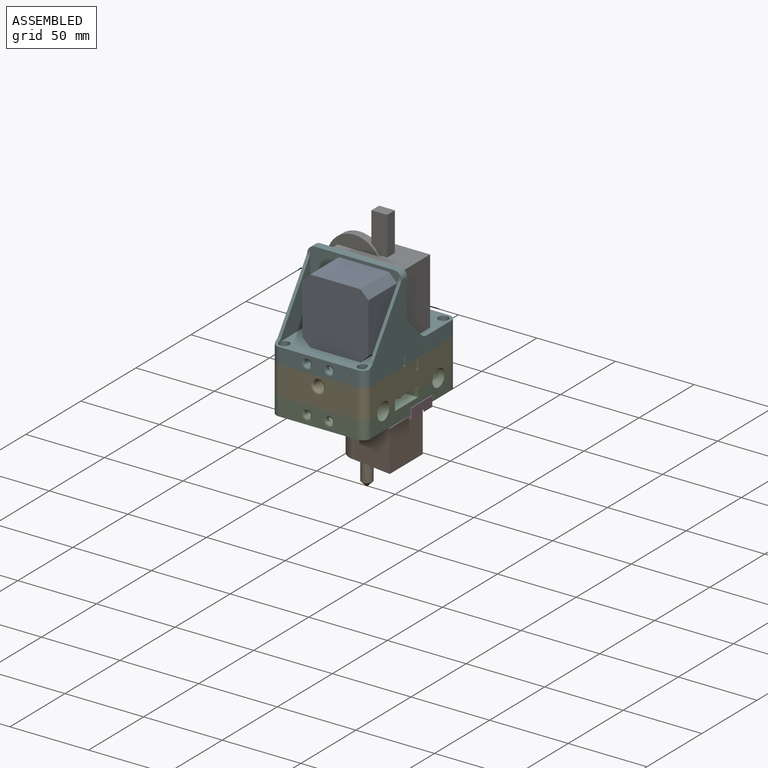
[diagram: assembled view]
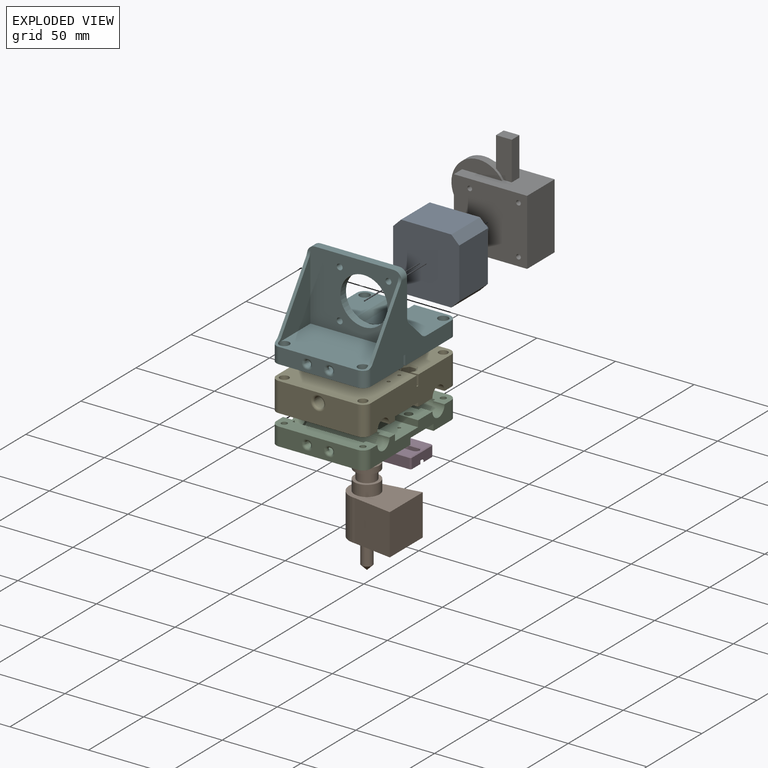
[diagram: exploded view]
GUIDED TOUR — MATED ASSEMBLY (Onshape document 26b72d1b7402915d3c3fbc10, AutoMate assembly 26b72d1b7402915d3c3fbc10_4db1da54b3cbb847e89b29d3_1b6510409ccf423bcf5e5d86_default)

This assembly has 7 components, labeled P0..P6 below (a component is one placed occurrence of a part; the same part can appear more than once), held together by 6 mates. A mate is a constraint between two components; its type names the relative motion it leaves free:
  FASTENED — locks the two components together rigidly (no relative motion).
Axis/direction vectors are unit vectors and 'through' points are millimeter coordinates, both in the assembly's world frame.

MATES
  1. FASTENED "Fastened 4": P1 <-> P3, direction (0.000, 0.000, 1.000) through (-5.00, 10.00, -17.00) mm
  2. FASTENED "Fastened 1": P3 <-> P2, direction (0.000, 0.000, 1.000) through (-5.00, 10.00, -11.00) mm
  3. FASTENED "Fastened 5": P4 <-> P5, direction (0.000, 0.000, 1.000) through (25.00, -36.50, 15.00) mm
  4. FASTENED "Fastened 2": P0 <-> P5, direction (0.000, 1.000, 0.000) through (-9.40, -8.50, 62.50) mm
  5. FASTENED "Fastened 7": P2 <-> P4, direction (0.000, 0.000, 1.000) through (25.00, -36.50, -3.55) mm
  6. FASTENED "Fastened 3": P6 <-> P5, direction (0.000, -1.000, 0.000) through (-9.40, -3.50, 62.50) mm

ASSEMBLY ORDER
  1. P3 — the base component [order heuristic]
  2. P1 — core [order heuristic]
  3. P2 [order verified]
  4. P4 [order verified]
  5. P5 [order verified]
  6. P0 [order verified]
  7. P6 [order verified]
(P2 verified with a relaxed clearance tolerance: the source model stores slight part interference there.)
Order-tag legend:
  [order verified] — this step's position reverses a verified removal order: the component was checked to insert without passing through the ones already placed.
  [order heuristic] — the first 2 components form the assembly's core: parts whose collision-free extraction could not be verified, listed in mate-graph order.

Of the 7 components, 1 carries the full construction recipe — the FeatureScript program that regenerates the part's solid from scratch; the rest are supplied as boundary geometry only.
Each toured component is shown spotlighted twice — in the assembled view, then in the exploded view, where a leader line traces a displaced component back to its assembled socket (saturated green if recipe-attached, orange if geometry-only; every other component desaturated gray) — followed by its recipe or geometry summary and the mates that hold it.
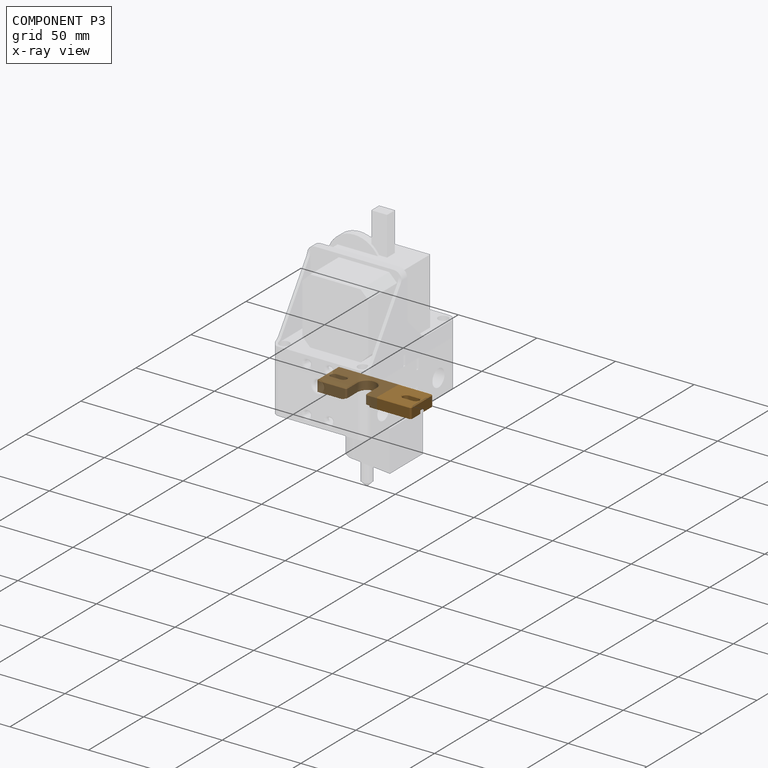
[diagram: component P3 — x-ray view]
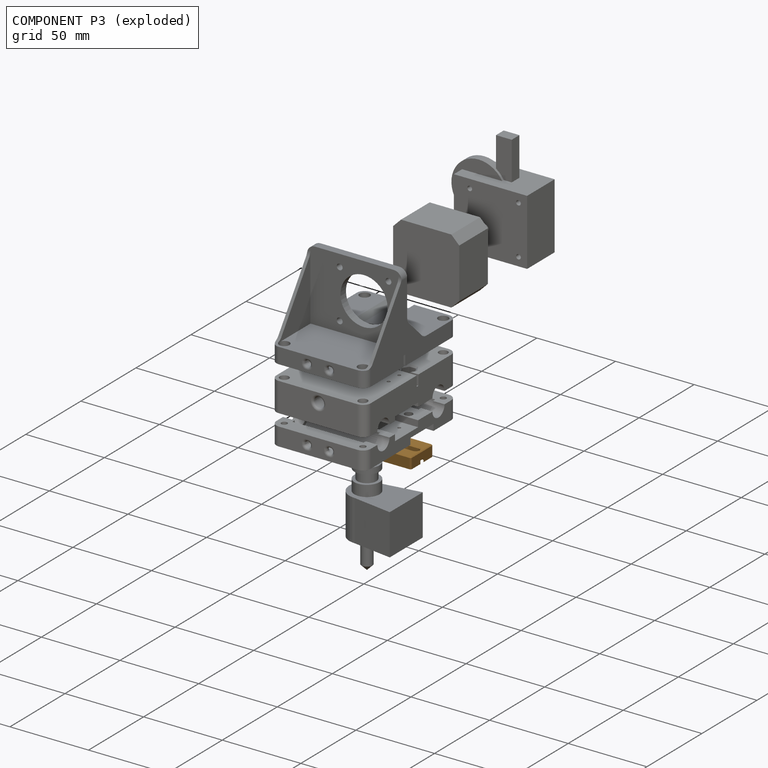
[diagram: component P3 — exploded]
COMPONENT P3 — geometry summary (no construction recipe available for this part):
  bounding box: 60.0 x 20.0 x 7.0 mm
  B-rep topology: 1 solid, 64 faces, 328 edges
  volume: 6183 mm^3 (74% of its bounding box)
Held by: FASTENED mate "Fastened 4" to P1; FASTENED mate "Fastened 1" to P2.
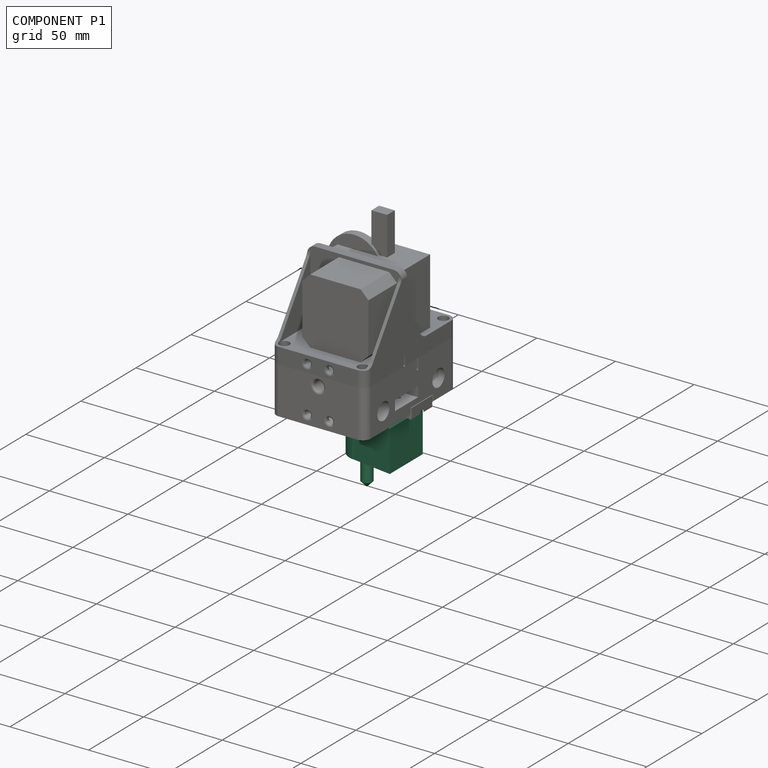
[diagram: component P1 — assembled]
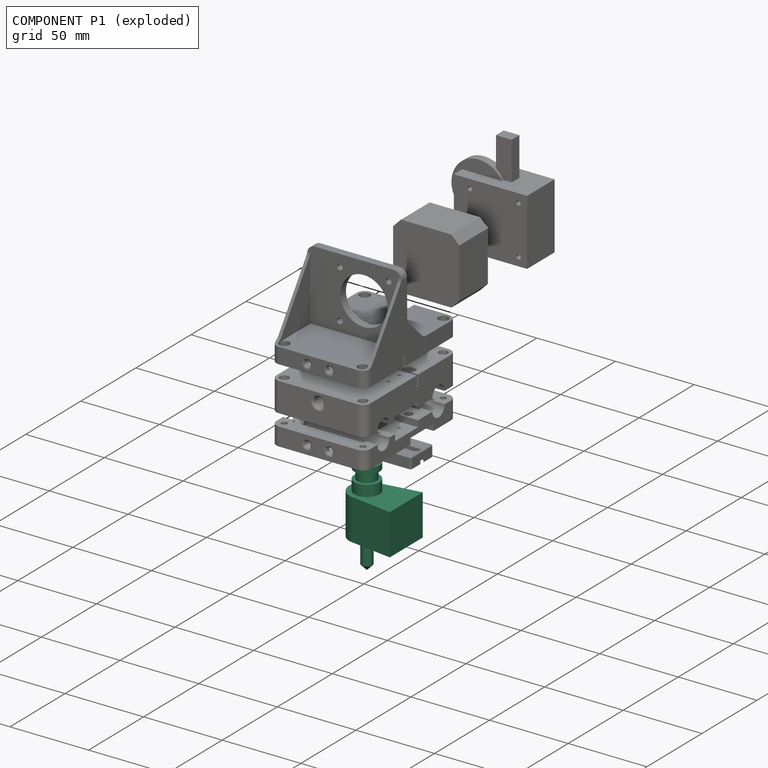
[diagram: component P1 — exploded]
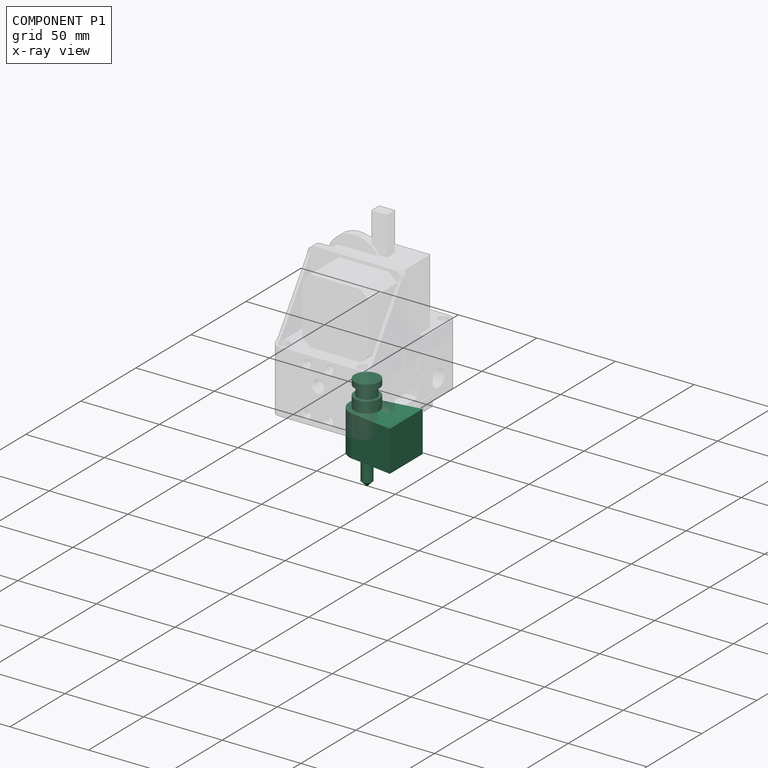
[diagram: component P1 — x-ray view]
COMPONENT P1 — recipe-attached (CADFS 00127798, mesh-verified: the recipe's output STEP matches this component's geometry to below the mesh-comparison resolution (tessellation chordal tolerance ~0.117 mm)).
Held by: FASTENED mate "Fastened 4" to P3.
Construction recipe (FeatureScript — the CAD program that rebuilds this solid; sketch coordinates are in the units given by the * unit suffixes, e.g. mm):

FeatureScript 1511;
import(path : "onshape/std/geometry.fs", version : "1511.0");
import(path : "onshape/std/common.fs", version : "1511.0");
const mm = millimeter;
const VERTEX = EntityType.VERTEX;
const EDGE = EntityType.EDGE;
const FACE = EntityType.FACE;
const BODY = EntityType.BODY;
function v(x, y){return vector(x, y);}
function OD(order){return orderDisambiguation(order);}
function OSD(set){return originalSetDisambiguation(set);}
function TD(topology){return topologyDisambiguation(topology);}
function TDD(query){return trueDependencyDisambiguation(query);}
function sQuery(a, b, c) {return sketchEntityQuery(a, b, c);}

annotation { "Feature Type Name" : "Feature", "Feature Type Description" : "" }
export const myFeature = defineFeature(function(context is Context, id is Id, definition is map)
    precondition{}
    {
        {
            var Q0;
            Q0=qCreatedBy(makeId("Front.planeOp"),FACE);
            var sketch = newSketch(context, id + "F0", { "sketchPlane" : qUnion([Q0])});
            skLineSegment(sketch, "E0", {"start": v(-8, 0) * mm, "end": v(-8, -3.7) * mm});
            skLineSegment(sketch, "E1", {"start": v(-8, -3.7) * mm, "end": v(-6, -3.7) * mm});
            skLineSegment(sketch, "E2", {"start": v(-6, -3.7) * mm, "end": v(-6, -9.7) * mm});
            skLineSegment(sketch, "E3", {"start": v(-6, -9.7) * mm, "end": v(-8, -9.7) * mm});
            skLineSegment(sketch, "E4", {"start": v(-8, -9.7) * mm, "end": v(-8, -12.7) * mm});
            skLineSegment(sketch, "E5", {"start": v(-8, 0) * mm, "end": v(0, 0) * mm});
            skLineSegment(sketch, "E6", {"start": v(0, 0) * mm, "end": v(0, 11.4) * mm, "construction": true});
            skLineSegment(sketch, "E7", {"start": v(-8, -12.7) * mm, "end": v(-8, -16.7) * mm});
            skLineSegment(sketch, "E8", {"start": v(-8, -16.7) * mm, "end": v(-11.15, -16.7) * mm});
            skLineSegment(sketch, "E9", {"start": v(-11.15, -16.7) * mm, "end": v(-11.15, -42.7) * mm});
            skLineSegment(sketch, "E10", {"start": v(-11.15, -42.7) * mm, "end": v(0, -42.7) * mm});
            skLineSegment(sketch, "E11", {"start": v(0, 0) * mm, "end": v(0, -42.7) * mm});
            skSolve(sketch);
        }
        {
            var Q0;
            Q0=makeQuery(id+"F0.imprint","IMPRINT",FACE,{"disambiguationData":[TD([[makeQuery(id+"F0.imprint","IMPRINT",EDGE,{"derivedFrom":sQuery(id+"F0.wireOp",EDGE,"E0")}),1.0]])]});
            var Q1;
            Q1=sQuery(id+"F0.wireOp",EDGE,"E11");
            revolve(context, id + "F1", {"entities" : qUnion([Q0]), "axis" : qUnion([Q1]), "revolveType" : RevolveType.FULL});
        }
        {
            var Q0;
            Q0=qCreatedBy(makeId("Front.planeOp"),FACE);
            var sketch = newSketch(context, id + "F2", { "sketchPlane" : qUnion([Q0])});
            skLineSegment(sketch, "E12", {"start": v(0, -42.7) * mm, "end": v(-3.5, -42.7) * mm});
            skLineSegment(sketch, "E13", {"start": v(-3.5, -42.7) * mm, "end": v(-3.5, -58.8) * mm});
            skLineSegment(sketch, "E14", {"start": v(-3.5, -58.8) * mm, "end": v(0, -62.3) * mm});
            skLineSegment(sketch, "E15", {"start": v(0, -62.3) * mm, "end": v(0, -42.7) * mm});
            skSolve(sketch);
        }
        {
            var Q0;
            Q0 = qSketchRegion(id + "F2", true);
            var Q1;
            Q1=sQuery(id+"F2.wireOp",EDGE,"E15");
            revolve(context, id + "F3", {"operationType" : NewBodyOperationType.ADD, "entities" : qUnion([Q0]), "axis" : qUnion([Q1]), "revolveType" : RevolveType.FULL});
        }
        {
            var Q0;
            Q0=makeQuery(id+"F1.opRevolve","SWEPT_FACE",FACE,{"disambiguationData":[OSD([sQuery(id+"F0.wireOp",EDGE,"E10")])]});
            var sketch = newSketch(context, id + "F4", { "sketchPlane" : qUnion([Q0])});
            skArc(sketch, "E16.0.0", {"start": v(0, -11.15) * mm, "mid": v(11.15, 0) * mm, "end": v(0, 11.15) * mm});
            skLineSegment(sketch, "E17", {"start": v(0, 11.15) * mm, "end": v(25, 15) * mm});
            skLineSegment(sketch, "E18", {"start": v(25, 15) * mm, "end": v(25, -15) * mm});
            skLineSegment(sketch, "E19", {"start": v(25, -15) * mm, "end": v(0, -11.15) * mm});
            skLineSegment(sketch, "E20", {"start": v(0, 0) * mm, "end": v(-21.57, 0) * mm, "construction": true});
            skSolve(sketch);
        }
        {
            var Q0;
            Q0 = qSketchRegion(id + "F4", true);
            var Q1;
            Q1=makeQuery(id+"F1.opRevolve","SWEPT_FACE",FACE,{"disambiguationData":[OSD([sQuery(id+"F0.wireOp",EDGE,"E8")])]});
            extrude(context, id + "F5", {"entities" : qUnion([Q0]), "operationType" : NewBodyOperationType.ADD, "endBound" : BoundingType.UP_TO_SURFACE, "oppositeDirection" : true, "endBoundEntityFace" : qUnion([Q1]), "depth" : 25 * mm});
        }
    });
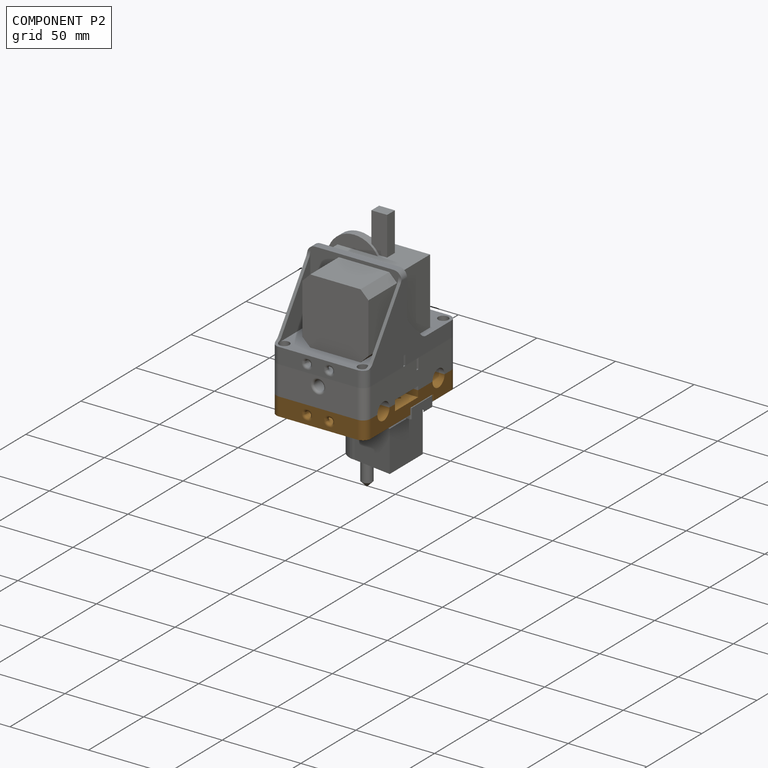
[diagram: component P2 — assembled]
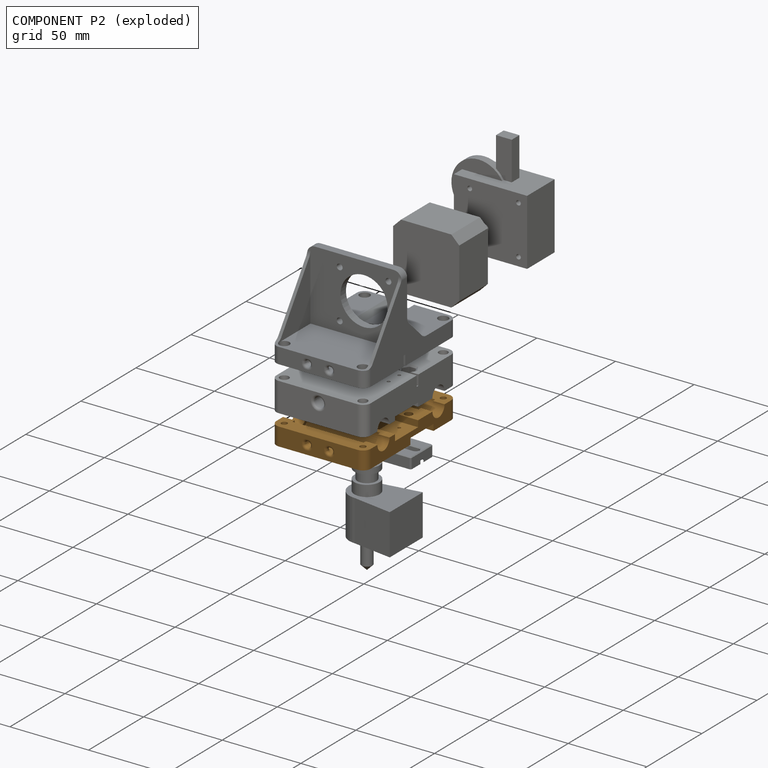
[diagram: component P2 — exploded]
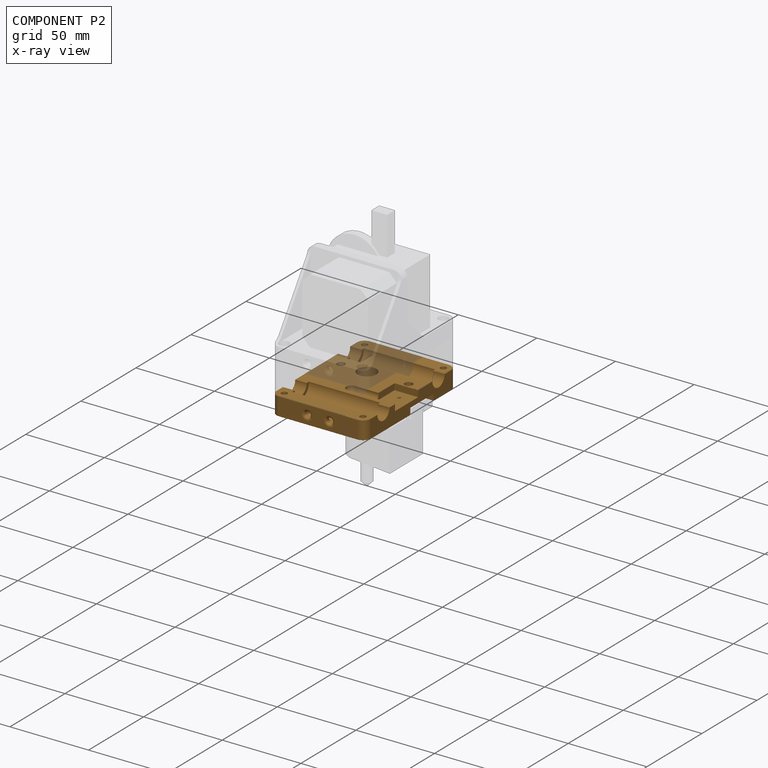
[diagram: component P2 — x-ray view]
COMPONENT P2 — geometry summary (no construction recipe available for this part):
  bounding box: 83.3 x 60.3 x 13.1 mm
  B-rep topology: 1 solid, 85 faces, 429 edges
  volume: 37603 mm^3 (57% of its bounding box)
Held by: FASTENED mate "Fastened 1" to P3; FASTENED mate "Fastened 7" to P4.
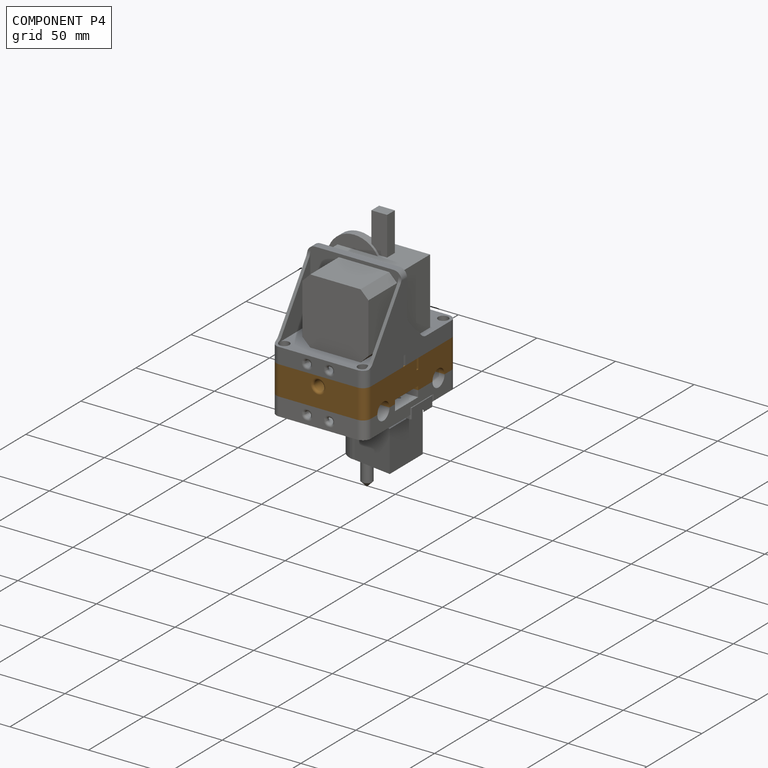
[diagram: component P4 — assembled]
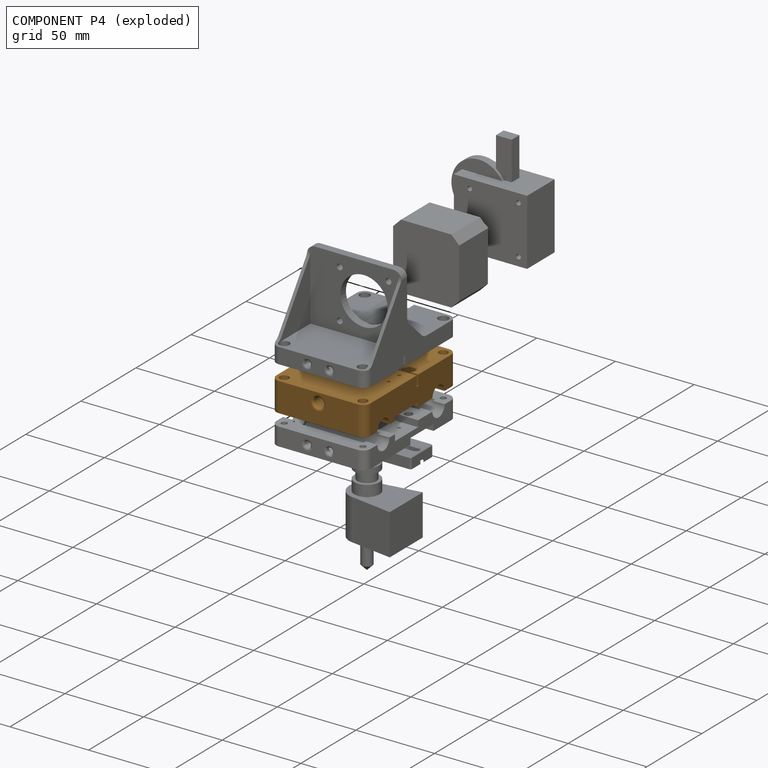
[diagram: component P4 — exploded]
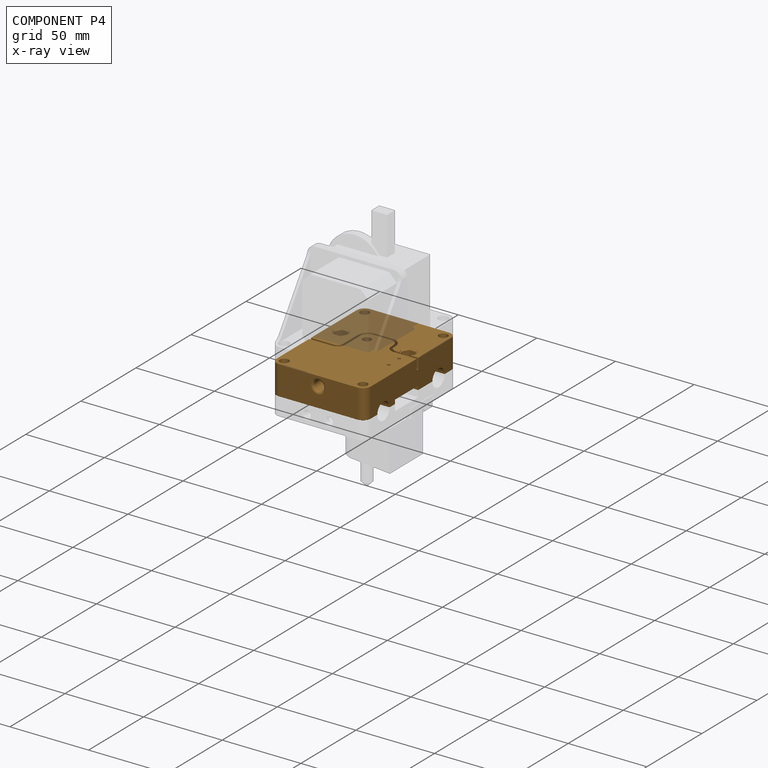
[diagram: component P4 — x-ray view]
COMPONENT P4 — geometry summary (no construction recipe available for this part):
  bounding box: 83.4 x 60.4 x 19.4 mm
  B-rep topology: 1 solid, 110 faces, 583 edges
  volume: 75887 mm^3 (78% of its bounding box)
Held by: FASTENED mate "Fastened 5" to P5; FASTENED mate "Fastened 7" to P2.
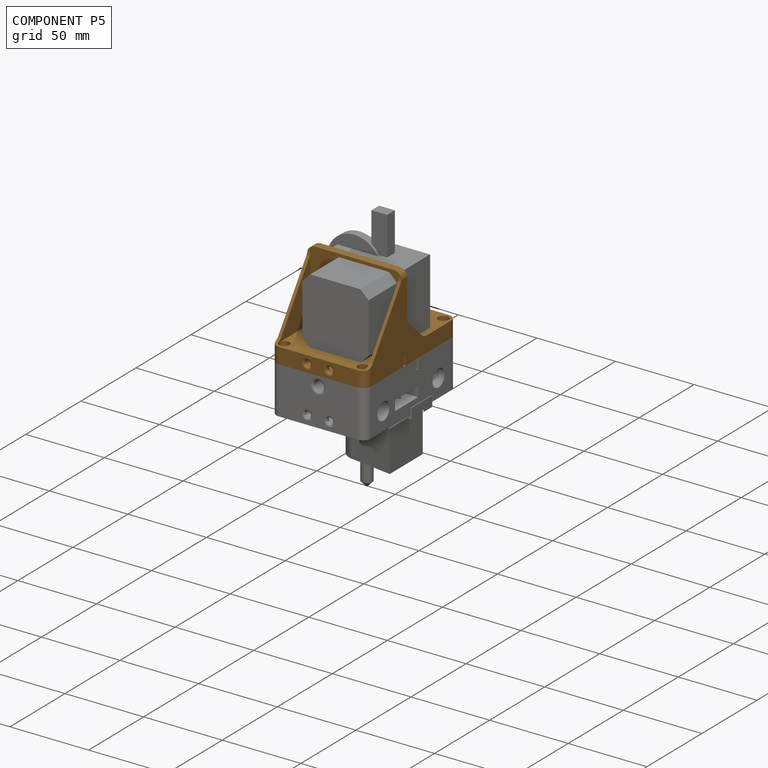
[diagram: component P5 — assembled]
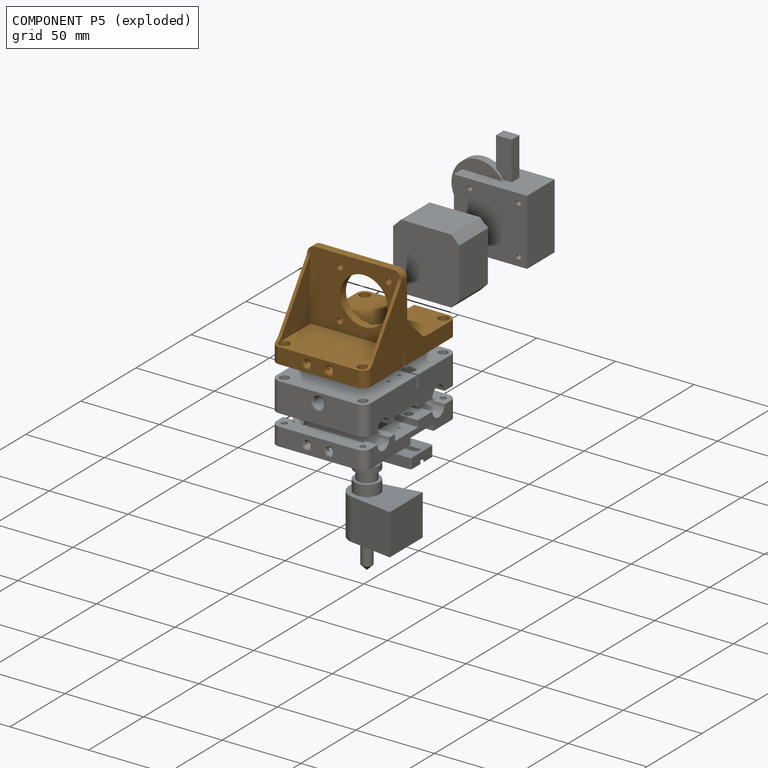
[diagram: component P5 — exploded]
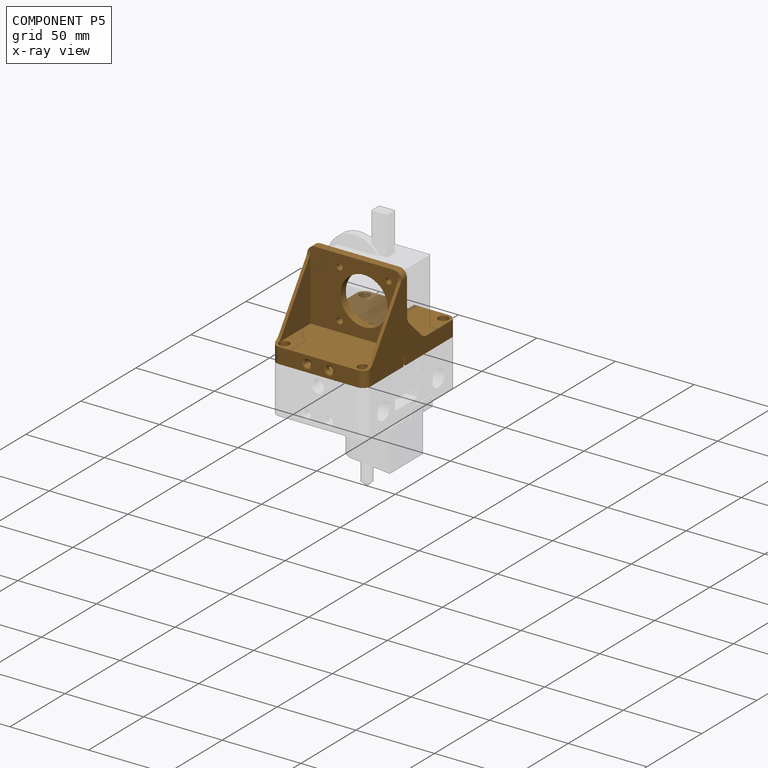
[diagram: component P5 — x-ray view]
COMPONENT P5 — geometry summary (no construction recipe available for this part):
  bounding box: 83.0 x 60.0 x 55.0 mm
  B-rep topology: 1 solid, 100 faces, 560 edges
  volume: 58021 mm^3 (21% of its bounding box)
Held by: FASTENED mate "Fastened 5" to P4; FASTENED mate "Fastened 2" to P0; FASTENED mate "Fastened 3" to P6.
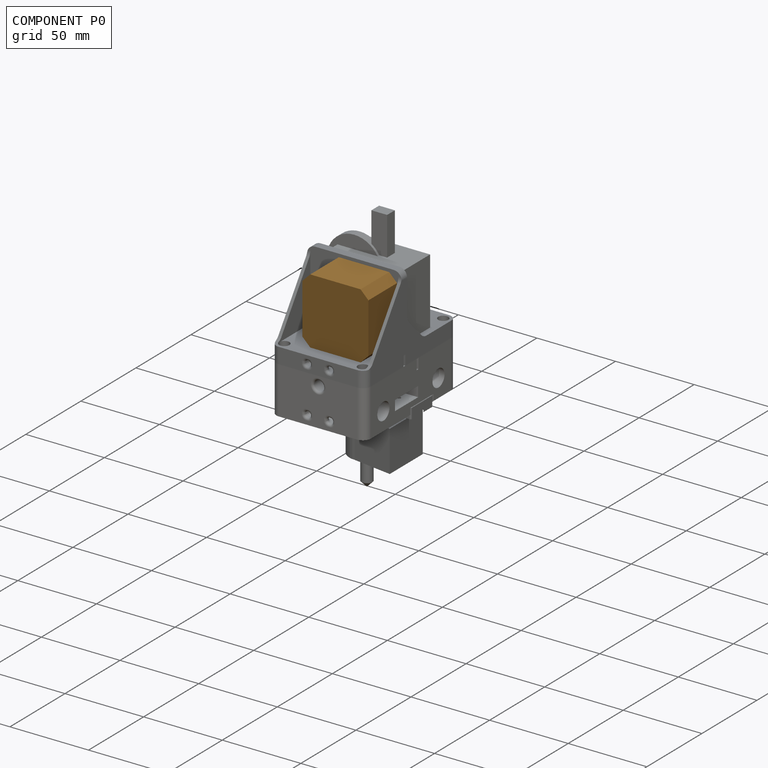
[diagram: component P0 — assembled]
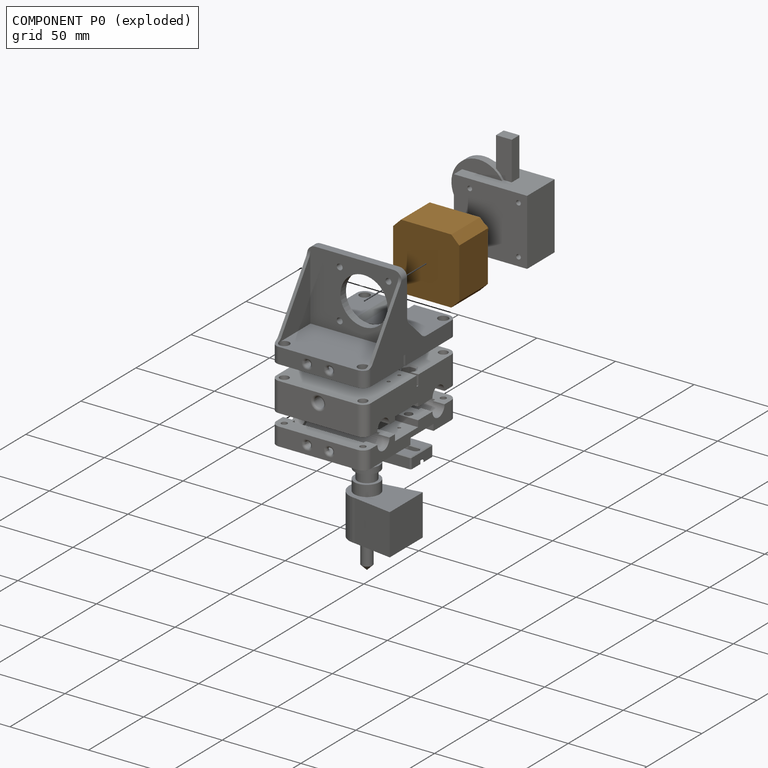
[diagram: component P0 — exploded]
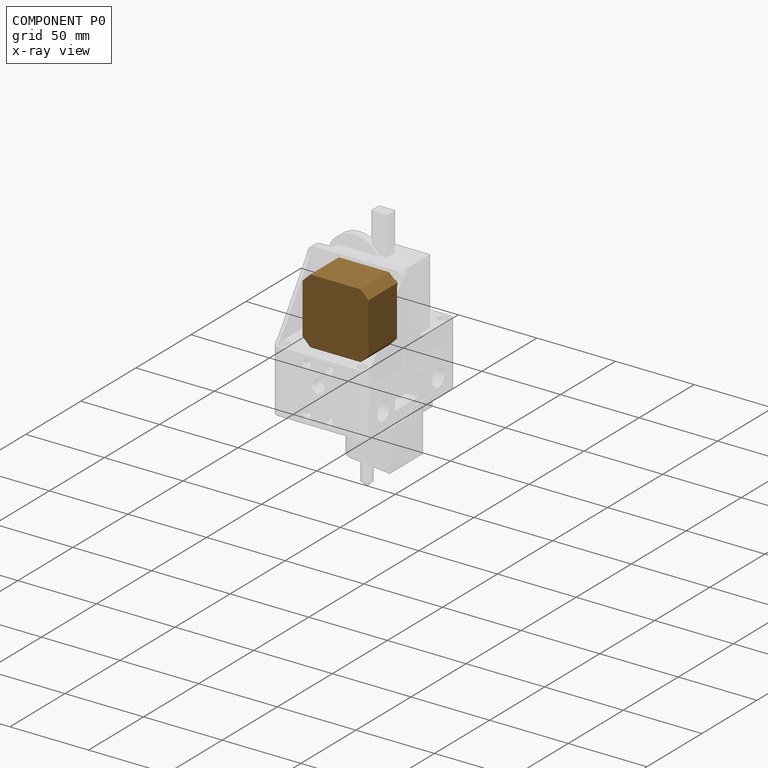
[diagram: component P0 — x-ray view]
COMPONENT P0 — geometry summary (no construction recipe available for this part):
  bounding box: 53.0 x 42.0 x 42.0 mm
  B-rep topology: 1 solid, 22 faces, 84 edges
  volume: 45674 mm^3 (49% of its bounding box)
  symmetry: 4-fold rotationally symmetric about the x axis; mirror-symmetric across its y mid-plane, z mid-plane
Held by: FASTENED mate "Fastened 2" to P5.
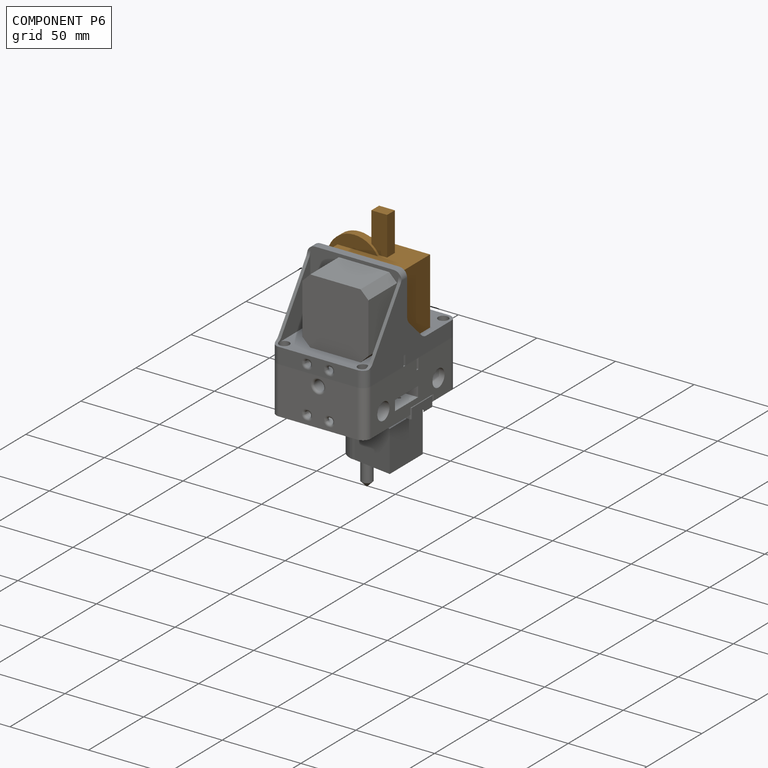
[diagram: component P6 — assembled]
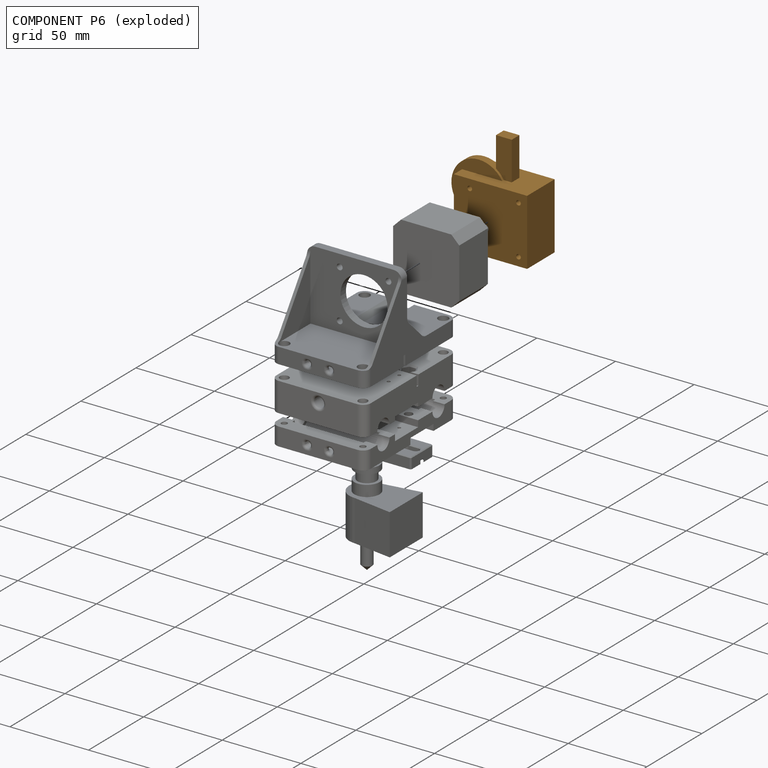
[diagram: component P6 — exploded]
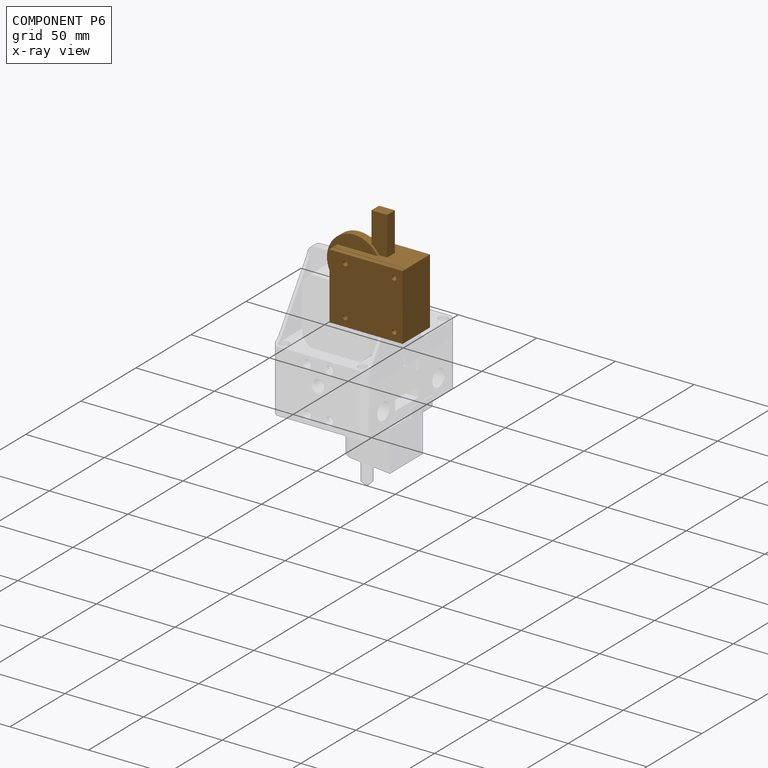
[diagram: component P6 — x-ray view]
COMPONENT P6 — geometry summary (no construction recipe available for this part):
  bounding box: 66.5 x 53.4 x 28.0 mm
  B-rep topology: 1 solid, 41 faces, 166 edges
  volume: 49636 mm^3 (50% of its bounding box)
Held by: FASTENED mate "Fastened 3" to P5.
PROVENANCE & LICENSES
Assembly (occurrences, transforms, mates, per-part STEP geometry): AutoMate dataset, Zenodo record 7776208, CC0.
Construction recipes: CADFS (HuggingFace VladPyatov/CADFS, CC-BY-4.0, layered over the ABC dataset), FeatureScript reconstruction programs keyed by ABC model id.
Join: ABC meta listings map ABC model id -> Onshape documentId; within a shared document, parts are matched by geometric signature (bounding-box dims + volume at 0.1% relative tolerance, exact B-rep face/solid counts).
Verification: 1 of this assembly's 7 components carries a recipe attachment, and every attachment is mesh-verified: the CADFS STEP and the AutoMate member STEP were compared as meshes in their shared local frame (symmetric sampled-point-to-mesh distance); worst across the 1 attachment: below the mesh-comparison resolution (tessellation chordal tolerance ~0.117 mm) on a 78 mm part.
Renders: orthographic iso camera (az 35 / el 25); the floor grid conveys scale (grid pitch printed in each image; no ruler). In the exploded view each component is displaced by its stored offset vector: the offsets alone carry the explosion direction (mate normal/axis signs are not orientation cues and do not encode it), and separation distances are assigned per mate-chain, not proportionally to assembly-order depth.
